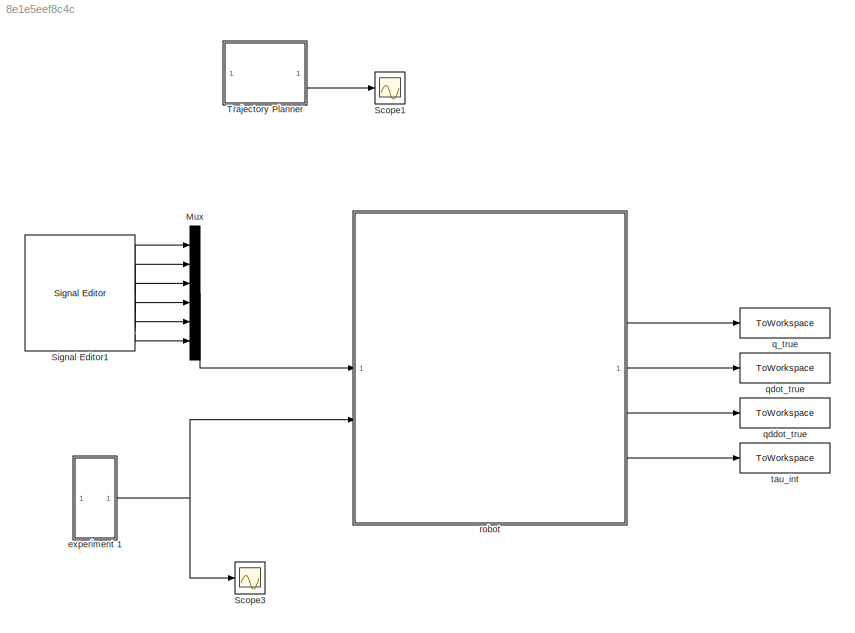
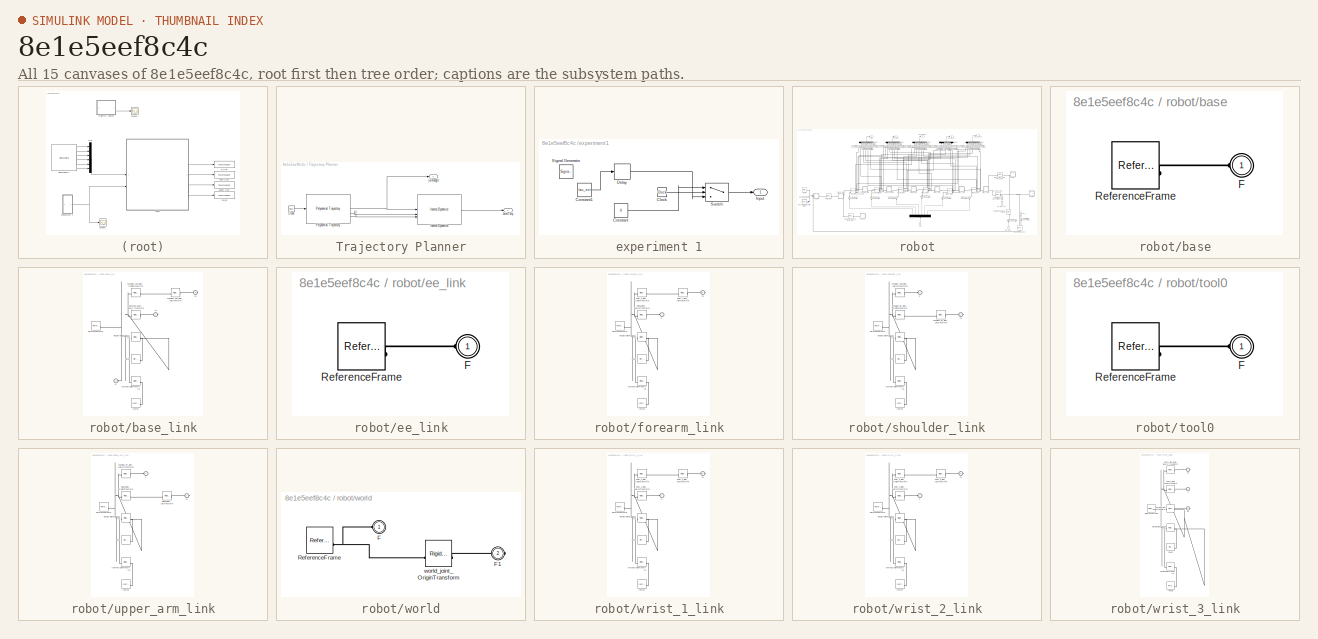
[diagram: thumbnail index - all 15 canvases of the model, root first then tree order]
MODEL slx_8e1e5eef8c4c
KIND model
CONFIG AbsTol = auto
CONFIG EnableMultiTasking = off
CONFIG FixedStep = auto
CONFIG MaxStep = auto
CONFIG MinStep = auto
CONFIG RelTol = 1e-3
CONFIG SampleTimeConstraint = Unconstrained
CONFIG SolverName = VariableStepAuto
CONFIG StartTime = 0.0
CONFIG StopTime = RUNTIME
BLOCK [Mux] Mux
  DisplayOption = bar
  Inputs = 6
BLOCK [Scope] Scope1
  Commented = on
  Floating = off
  NumInputPorts = 1
  ScopeSpecificationString = Simulink.scopes.TimeScopeBlockCfg('CurrentConfiguration', extmgr.ConfigurationSet(extmgr.Configuration('Core','General UI',true),extmgr.Configuration('Core','Source UI',true),extmgr.Configuration('Sources','WiredSimulink',true,'DataLoggingVariableName','ScopeData1'),extmgr.Configuration('Visuals','Time Domain',true,'SerializedDisplays',{struct('MinYLimReal','-2.67897','MaxYLimReal','2.07106','YLab...<+1625ch>
BLOCK [Scope] Scope3
  Floating = off
  NumInputPorts = 1
  ScopeSpecificationString = Simulink.scopes.TimeScopeBlockCfg('CurrentConfiguration', extmgr.ConfigurationSet(extmgr.Configuration('Core','General UI',true),extmgr.Configuration('Core','Source UI',true),extmgr.Configuration('Sources','WiredSimulink',true,'DataLoggingVariableName','ScopeData1'),extmgr.Configuration('Visuals','Time Domain',true,'SerializedDisplays',{struct('MinYLimReal','-12500.00000','MaxYLimReal','112500.000...<+1523ch>
BLOCK [Reference] Signal Editor1  REF=SignalEditorBlockLib/Signal Editor
  LibrarySourceBlock = simulink/Sources/Signal Editor
  SourceBlock = SignalEditorBlockLib/Signal Editor
  SourceType = SignalEditor
  UserDataPersistent = on
BLOCK [SubSystem] Trajectory Planner
  Commented = on
BLOCK [Clock] Trajectory Planner/Clock
BLOCK [Reference] Trajectory Planner/Inverse Dynamics  REF=robotmaniplib/Inverse Dynamics
  SourceBlock = robotmaniplib/Inverse Dynamics
  SourceType = Inverse Dynamics
BLOCK [Outport] Trajectory Planner/JointTorq
BLOCK [Reference] Trajectory Planner/Polynomial Trajectory  REF=robotcorelib/Polynomial Trajectory
  LibrarySourceBlock = robotutilslib/Polynomial Trajectory
  SourceBlock = robotcorelib/Polynomial Trajectory
  SourceType = robotics.slcore.internal.block.PolyTrajSys
BLOCK [Outport] Trajectory Planner/jointangle
  Port = 2
BLOCK [SubSystem] experiment 1
BLOCK [Clock] experiment 1/Clock
BLOCK [Constant] experiment 1/Constant
  SampleTime = Ts
  Value = 0
BLOCK [Constant] experiment 1/Constant1
  Value = tau_ext
BLOCK [Delay] experiment 1/Delay
  DelayLength = delay
  InputPortMap = u0
  SampleTime = Ts
BLOCK [Outport] experiment 1/Input
BLOCK [SignalGenerator] experiment 1/Signal Generator
  Amplitude = tau_ext
  Commented = on
  Frequency = 5
  Units = rad/sec
BLOCK [Switch] experiment 1/Switch
  Criteria = u2 > Threshold
  InputSameDT = off
  NameLocation = left
  SaturateOnIntegerOverflow = off
  Threshold = delay/TIM_MAG+imp
BLOCK [ToWorkspace] q_true
  FixptAsFi = on
  MaxDataPoints = inf
  SampleTime = -1
  SaveFormat = Timeseries
  VariableName = q_out
BLOCK [ToWorkspace] qddot_true
  FixptAsFi = on
  MaxDataPoints = inf
  SampleTime = -1
  SaveFormat = Timeseries
  VariableName = qddot_out
BLOCK [ToWorkspace] qdot_true
  FixptAsFi = on
  MaxDataPoints = inf
  SampleTime = -1
  SaveFormat = Timeseries
  VariableName = qdot_out
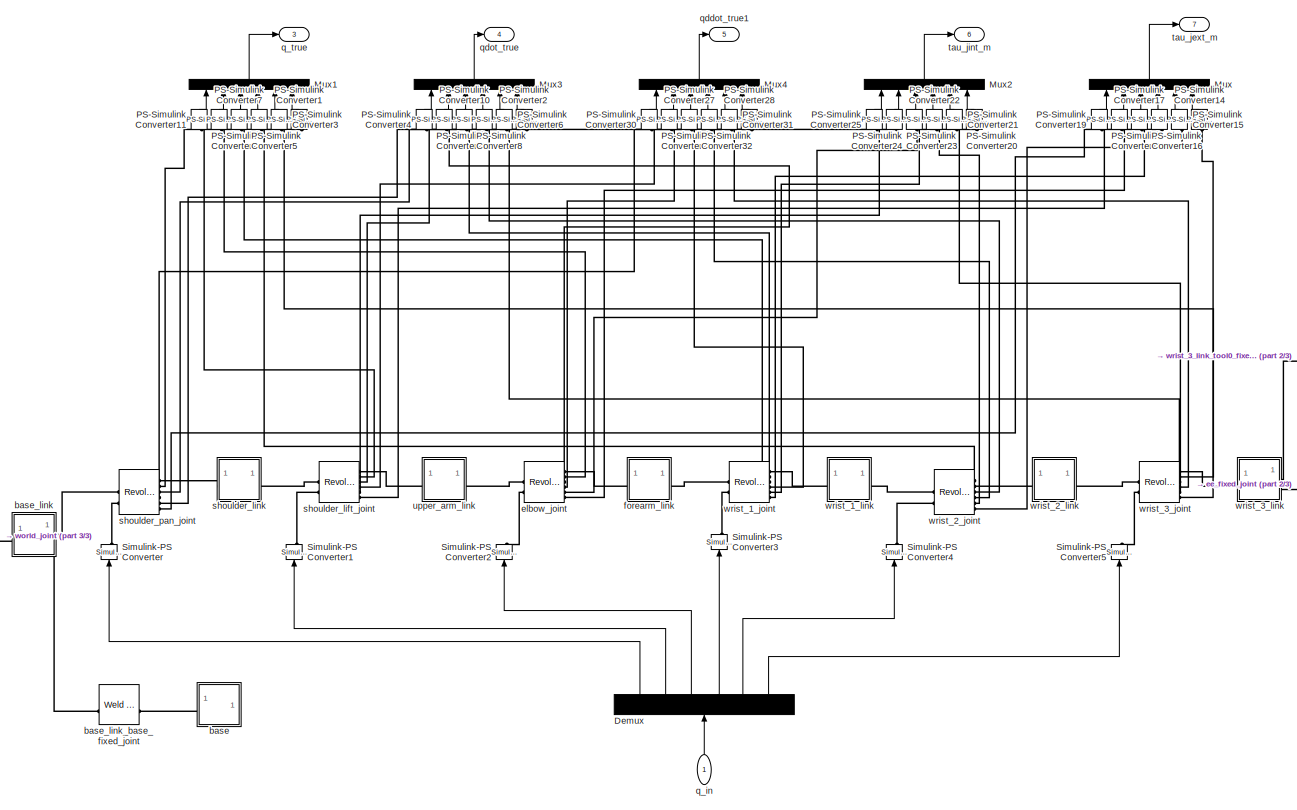
[diagram: robot - part 1/3, center side, full height]
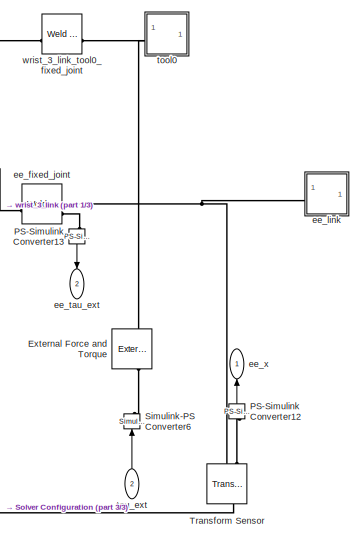
[diagram: robot - part 2/3, bottom right region]
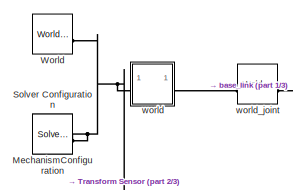
[diagram: robot - part 3/3, middle left region]
BLOCK [SubSystem] robot
  ShowPortLabels = SignalName
BLOCK [Demux] robot/Demux
  NameLocation = right
  Outputs = 6
BLOCK [Reference] robot/External Force and Torque  REF=sm_lib/Forces and
Torques/External Force
and Torque
  NameLocation = right
  SourceBlock = sm_lib/Forces and\nTorques/External Force\nand Torque
  SourceType = External Force\nand Torque
BLOCK [Reference] robot/MechanismConfiguration  REF=sm_lib/Utilities/Mechanism
Configuration
  SourceBlock = sm_lib/Utilities/Mechanism\nConfiguration
  SourceType = Mechanism\nConfiguration
BLOCK [Mux] robot/Mux
  DisplayOption = bar
  Inputs = 6
  NameLocation = right
BLOCK [Mux] robot/Mux1
  DisplayOption = bar
  Inputs = 6
  NameLocation = right
BLOCK [Mux] robot/Mux2
  DisplayOption = bar
  Inputs = 6
  NameLocation = right
BLOCK [Mux] robot/Mux3
  DisplayOption = bar
  Inputs = 6
  NameLocation = right
BLOCK [Mux] robot/Mux4
  DisplayOption = bar
  Inputs = 6
  NameLocation = right
BLOCK [Reference] robot/PS-Simulink Converter1  REF=nesl_utility/PS-Simulink
Converter
  NameLocation = right
  SourceBlock = nesl_utility/PS-Simulink\nConverter
  SourceType = PS-Simulink\nConverter
BLOCK [Reference] robot/PS-Simulink Converter10  REF=nesl_utility/PS-Simulink
Converter
  NameLocation = right
  SourceBlock = nesl_utility/PS-Simulink\nConverter
  SourceType = PS-Simulink\nConverter
BLOCK [Reference] robot/PS-Simulink Converter11  REF=nesl_utility/PS-Simulink
Converter
  NameLocation = right
  SourceBlock = nesl_utility/PS-Simulink\nConverter
  SourceType = PS-Simulink\nConverter
BLOCK [Reference] robot/PS-Simulink Converter12  REF=nesl_utility/PS-Simulink
Converter
  NameLocation = right
  SourceBlock = nesl_utility/PS-Simulink\nConverter
  SourceType = PS-Simulink\nConverter
BLOCK [Reference] robot/PS-Simulink Converter13  REF=nesl_utility/PS-Simulink
Converter
  NameLocation = left
  SourceBlock = nesl_utility/PS-Simulink\nConverter
  SourceType = PS-Simulink\nConverter
BLOCK [Reference] robot/PS-Simulink Converter14  REF=nesl_utility/PS-Simulink
Converter
  NameLocation = right
  SourceBlock = nesl_utility/PS-Simulink\nConverter
  SourceType = PS-Simulink\nConverter
BLOCK [Reference] robot/PS-Simulink Converter15  REF=nesl_utility/PS-Simulink
Converter
  NameLocation = right
  SourceBlock = nesl_utility/PS-Simulink\nConverter
  SourceType = PS-Simulink\nConverter
BLOCK [Reference] robot/PS-Simulink Converter16  REF=nesl_utility/PS-Simulink
Converter
  NameLocation = right
  SourceBlock = nesl_utility/PS-Simulink\nConverter
  SourceType = PS-Simulink\nConverter
BLOCK [Reference] robot/PS-Simulink Converter17  REF=nesl_utility/PS-Simulink
Converter
  NameLocation = right
  SourceBlock = nesl_utility/PS-Simulink\nConverter
  SourceType = PS-Simulink\nConverter
BLOCK [Reference] robot/PS-Simulink Converter18  REF=nesl_utility/PS-Simulink
Converter
  NameLocation = right
  SourceBlock = nesl_utility/PS-Simulink\nConverter
  SourceType = PS-Simulink\nConverter
BLOCK [Reference] robot/PS-Simulink Converter19  REF=nesl_utility/PS-Simulink
Converter
  NameLocation = right
  SourceBlock = nesl_utility/PS-Simulink\nConverter
  SourceType = PS-Simulink\nConverter
BLOCK [Reference] robot/PS-Simulink Converter2  REF=nesl_utility/PS-Simulink
Converter
  NameLocation = right
  SourceBlock = nesl_utility/PS-Simulink\nConverter
  SourceType = PS-Simulink\nConverter
BLOCK [Reference] robot/PS-Simulink Converter20  REF=nesl_utility/PS-Simulink
Converter
  NameLocation = right
  SourceBlock = nesl_utility/PS-Simulink\nConverter
  SourceType = PS-Simulink\nConverter
BLOCK [Reference] robot/PS-Simulink Converter21  REF=nesl_utility/PS-Simulink
Converter
  NameLocation = right
  SourceBlock = nesl_utility/PS-Simulink\nConverter
  SourceType = PS-Simulink\nConverter
BLOCK [Reference] robot/PS-Simulink Converter22  REF=nesl_utility/PS-Simulink
Converter
  NameLocation = right
  SourceBlock = nesl_utility/PS-Simulink\nConverter
  SourceType = PS-Simulink\nConverter
BLOCK [Reference] robot/PS-Simulink Converter23  REF=nesl_utility/PS-Simulink
Converter
  NameLocation = right
  SourceBlock = nesl_utility/PS-Simulink\nConverter
  SourceType = PS-Simulink\nConverter
BLOCK [Reference] robot/PS-Simulink Converter24  REF=nesl_utility/PS-Simulink
Converter
  NameLocation = right
  SourceBlock = nesl_utility/PS-Simulink\nConverter
  SourceType = PS-Simulink\nConverter
BLOCK [Reference] robot/PS-Simulink Converter25  REF=nesl_utility/PS-Simulink
Converter
  NameLocation = right
  SourceBlock = nesl_utility/PS-Simulink\nConverter
  SourceType = PS-Simulink\nConverter
BLOCK [Reference] robot/PS-Simulink Converter26  REF=nesl_utility/PS-Simulink
Converter
  NameLocation = right
  SourceBlock = nesl_utility/PS-Simulink\nConverter
  SourceType = PS-Simulink\nConverter
BLOCK [Reference] robot/PS-Simulink Converter27  REF=nesl_utility/PS-Simulink
Converter
  NameLocation = right
  SourceBlock = nesl_utility/PS-Simulink\nConverter
  SourceType = PS-Simulink\nConverter
BLOCK [Reference] robot/PS-Simulink Converter28  REF=nesl_utility/PS-Simulink
Converter
  NameLocation = right
  SourceBlock = nesl_utility/PS-Simulink\nConverter
  SourceType = PS-Simulink\nConverter
BLOCK [Reference] robot/PS-Simulink Converter29  REF=nesl_utility/PS-Simulink
Converter
  NameLocation = right
  SourceBlock = nesl_utility/PS-Simulink\nConverter
  SourceType = PS-Simulink\nConverter
BLOCK [Reference] robot/PS-Simulink Converter3  REF=nesl_utility/PS-Simulink
Converter
  NameLocation = right
  SourceBlock = nesl_utility/PS-Simulink\nConverter
  SourceType = PS-Simulink\nConverter
BLOCK [Reference] robot/PS-Simulink Converter30  REF=nesl_utility/PS-Simulink
Converter
  NameLocation = right
  SourceBlock = nesl_utility/PS-Simulink\nConverter
  SourceType = PS-Simulink\nConverter
BLOCK [Reference] robot/PS-Simulink Converter31  REF=nesl_utility/PS-Simulink
Converter
  NameLocation = right
  SourceBlock = nesl_utility/PS-Simulink\nConverter
  SourceType = PS-Simulink\nConverter
BLOCK [Reference] robot/PS-Simulink Converter32  REF=nesl_utility/PS-Simulink
Converter
  NameLocation = right
  SourceBlock = nesl_utility/PS-Simulink\nConverter
  SourceType = PS-Simulink\nConverter
BLOCK [Reference] robot/PS-Simulink Converter4  REF=nesl_utility/PS-Simulink
Converter
  NameLocation = right
  SourceBlock = nesl_utility/PS-Simulink\nConverter
  SourceType = PS-Simulink\nConverter
BLOCK [Reference] robot/PS-Simulink Converter5  REF=nesl_utility/PS-Simulink
Converter
  NameLocation = right
  SourceBlock = nesl_utility/PS-Simulink\nConverter
  SourceType = PS-Simulink\nConverter
BLOCK [Reference] robot/PS-Simulink Converter6  REF=nesl_utility/PS-Simulink
Converter
  NameLocation = right
  SourceBlock = nesl_utility/PS-Simulink\nConverter
  SourceType = PS-Simulink\nConverter
BLOCK [Reference] robot/PS-Simulink Converter7  REF=nesl_utility/PS-Simulink
Converter
  NameLocation = right
  SourceBlock = nesl_utility/PS-Simulink\nConverter
  SourceType = PS-Simulink\nConverter
BLOCK [Reference] robot/PS-Simulink Converter8  REF=nesl_utility/PS-Simulink
Converter
  NameLocation = right
  SourceBlock = nesl_utility/PS-Simulink\nConverter
  SourceType = PS-Simulink\nConverter
BLOCK [Reference] robot/PS-Simulink Converter9  REF=nesl_utility/PS-Simulink
Converter
  NameLocation = right
  SourceBlock = nesl_utility/PS-Simulink\nConverter
  SourceType = PS-Simulink\nConverter
BLOCK [Reference] robot/Simulink-PS Converter  REF=nesl_utility/Simulink-PS
Converter
  NameLocation = right
  SourceBlock = nesl_utility/Simulink-PS\nConverter
  SourceType = Simulink-PS\nConverter
BLOCK [Reference] robot/Simulink-PS Converter1  REF=nesl_utility/Simulink-PS
Converter
  NameLocation = right
  SourceBlock = nesl_utility/Simulink-PS\nConverter
  SourceType = Simulink-PS\nConverter
BLOCK [Reference] robot/Simulink-PS Converter2  REF=nesl_utility/Simulink-PS
Converter
  NameLocation = right
  SourceBlock = nesl_utility/Simulink-PS\nConverter
  SourceType = Simulink-PS\nConverter
BLOCK [Reference] robot/Simulink-PS Converter3  REF=nesl_utility/Simulink-PS
Converter
  NameLocation = right
  SourceBlock = nesl_utility/Simulink-PS\nConverter
  SourceType = Simulink-PS\nConverter
BLOCK [Reference] robot/Simulink-PS Converter4  REF=nesl_utility/Simulink-PS
Converter
  NameLocation = right
  SourceBlock = nesl_utility/Simulink-PS\nConverter
  SourceType = Simulink-PS\nConverter
BLOCK [Reference] robot/Simulink-PS Converter5  REF=nesl_utility/Simulink-PS
Converter
  NameLocation = right
  SourceBlock = nesl_utility/Simulink-PS\nConverter
  SourceType = Simulink-PS\nConverter
BLOCK [Reference] robot/Simulink-PS Converter6  REF=nesl_utility/Simulink-PS
Converter
  NameLocation = right
  SourceBlock = nesl_utility/Simulink-PS\nConverter
  SourceType = Simulink-PS\nConverter
BLOCK [Reference] robot/Solver Configuration  REF=nesl_utility/Solver
Configuration
  SourceBlock = nesl_utility/Solver\nConfiguration
  SourceType = Solver\nConfiguration
BLOCK [Reference] robot/Transform Sensor  REF=sm_lib/Frames and
Transforms/Transform
Sensor
  NameLocation = right
  SourceBlock = sm_lib/Frames and\nTransforms/Transform\nSensor
  SourceType = Transform\nSensor
BLOCK [Reference] robot/World  REF=sm_lib/Frames and
Transforms/World Frame
  SourceBlock = sm_lib/Frames and\nTransforms/World Frame
  SourceType = World Frame
BLOCK [SubSystem] robot/base
BLOCK [PMIOPort] robot/base/F
  Side = Left
BLOCK [Reference] robot/base/ReferenceFrame  REF=sm_lib/Frames and
Transforms/Reference
Frame
  SourceBlock = sm_lib/Frames and\nTransforms/Reference\nFrame
  SourceType = Reference\nFrame
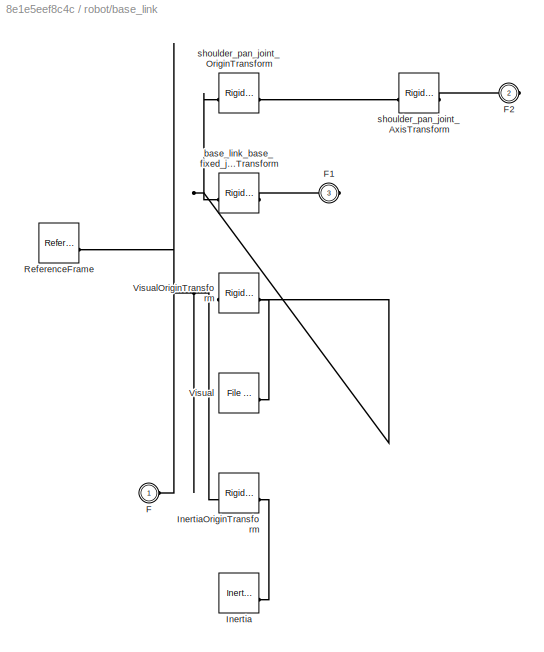
BLOCK [SubSystem] robot/base_link
BLOCK [PMIOPort] robot/base_link/F
  Side = Left
BLOCK [PMIOPort] robot/base_link/F1
  Port = 3
  Side = Right
BLOCK [PMIOPort] robot/base_link/F2
  Port = 2
  Side = Right
BLOCK [Reference] robot/base_link/Inertia  REF=sm_lib/Body Elements/Inertia
  SourceBlock = sm_lib/Body Elements/Inertia
  SourceType = Inertia
BLOCK [Reference] robot/base_link/InertiaOriginTransform  REF=sm_lib/Frames and
Transforms/Rigid
Transform
  SourceBlock = sm_lib/Frames and\nTransforms/Rigid\nTransform
  SourceType = Rigid\nTransform
BLOCK [Reference] robot/base_link/ReferenceFrame  REF=sm_lib/Frames and
Transforms/Reference
Frame
  SourceBlock = sm_lib/Frames and\nTransforms/Reference\nFrame
  SourceType = Reference\nFrame
BLOCK [Reference] robot/base_link/Visual  REF=sm_lib/Body Elements/File Solid
  SourceBlock = sm_lib/Body Elements/File Solid
  SourceType = File Solid
BLOCK [Reference] robot/base_link/VisualOriginTransform  REF=sm_lib/Frames and
Transforms/Rigid
Transform
  SourceBlock = sm_lib/Frames and\nTransforms/Rigid\nTransform
  SourceType = Rigid\nTransform
BLOCK [Reference] robot/base_link/base_link_base_fixed_joint_OriginTransform  REF=sm_lib/Frames and
Transforms/Rigid
Transform
  SourceBlock = sm_lib/Frames and\nTransforms/Rigid\nTransform
  SourceType = Rigid\nTransform
BLOCK [Reference] robot/base_link/shoulder_pan_joint_AxisTransform  REF=sm_lib/Frames and
Transforms/Rigid
Transform
  SourceBlock = sm_lib/Frames and\nTransforms/Rigid\nTransform
  SourceType = Rigid\nTransform
BLOCK [Reference] robot/base_link/shoulder_pan_joint_OriginTransform  REF=sm_lib/Frames and
Transforms/Rigid
Transform
  SourceBlock = sm_lib/Frames and\nTransforms/Rigid\nTransform
  SourceType = Rigid\nTransform
BLOCK [Reference] robot/base_link_base_fixed_joint  REF=sm_lib/Joints/Weld Joint
  SourceBlock = sm_lib/Joints/Weld Joint
  SourceType = Weld Joint
BLOCK [Reference] robot/ee_fixed_joint  REF=sm_lib/Joints/Weld Joint
  SourceBlock = sm_lib/Joints/Weld Joint
  SourceType = Weld Joint
BLOCK [SubSystem] robot/ee_link
BLOCK [PMIOPort] robot/ee_link/F
  Side = Left
BLOCK [Reference] robot/ee_link/ReferenceFrame  REF=sm_lib/Frames and
Transforms/Reference
Frame
  SourceBlock = sm_lib/Frames and\nTransforms/Reference\nFrame
  SourceType = Reference\nFrame
BLOCK [Outport] robot/ee_tau_ext
  NameLocation = left
  Port = 2
  SampleTime = Ts
BLOCK [Outport] robot/ee_x
  NameLocation = right
  SampleTime = Ts
BLOCK [Reference] robot/elbow_joint  REF=sm_lib/Joints/Revolute Joint
  SourceBlock = sm_lib/Joints/Revolute Joint
  SourceType = Revolute Joint
BLOCK [SubSystem] robot/forearm_link
BLOCK [PMIOPort] robot/forearm_link/F
  Side = Left
BLOCK [PMIOPort] robot/forearm_link/F1
  Port = 2
  Side = Right
BLOCK [Reference] robot/forearm_link/Inertia  REF=sm_lib/Body Elements/Inertia
  SourceBlock = sm_lib/Body Elements/Inertia
  SourceType = Inertia
BLOCK [Reference] robot/forearm_link/InertiaOriginTransform  REF=sm_lib/Frames and
Transforms/Rigid
Transform
  SourceBlock = sm_lib/Frames and\nTransforms/Rigid\nTransform
  SourceType = Rigid\nTransform
BLOCK [Reference] robot/forearm_link/ReferenceFrame  REF=sm_lib/Frames and
Transforms/Reference
Frame
  SourceBlock = sm_lib/Frames and\nTransforms/Reference\nFrame
  SourceType = Reference\nFrame
BLOCK [Reference] robot/forearm_link/Visual  REF=sm_lib/Body Elements/File Solid
  SourceBlock = sm_lib/Body Elements/File Solid
  SourceType = File Solid
BLOCK [Reference] robot/forearm_link/VisualOriginTransform  REF=sm_lib/Frames and
Transforms/Rigid
Transform
  SourceBlock = sm_lib/Frames and\nTransforms/Rigid\nTransform
  SourceType = Rigid\nTransform
BLOCK [Reference] robot/forearm_link/elbow_joint_AxisInvTransform  REF=sm_lib/Frames and
Transforms/Rigid
Transform
  SourceBlock = sm_lib/Frames and\nTransforms/Rigid\nTransform
  SourceType = Rigid\nTransform
BLOCK [Reference] robot/forearm_link/wrist_1_joint_AxisTransform  REF=sm_lib/Frames and
Transforms/Rigid
Transform
  SourceBlock = sm_lib/Frames and\nTransforms/Rigid\nTransform
  SourceType = Rigid\nTransform
BLOCK [Reference] robot/forearm_link/wrist_1_joint_OriginTransform  REF=sm_lib/Frames and
Transforms/Rigid
Transform
  SourceBlock = sm_lib/Frames and\nTransforms/Rigid\nTransform
  SourceType = Rigid\nTransform
BLOCK [Inport] robot/q_in
  NameLocation = right
BLOCK [Outport] robot/q_true
  Port = 3
  SampleTime = Ts
BLOCK [Outport] robot/qddot_true1
  Port = 5
  SampleTime = Ts
BLOCK [Outport] robot/qdot_true
  Port = 4
  SampleTime = Ts
BLOCK [Reference] robot/shoulder_lift_joint  REF=sm_lib/Joints/Revolute Joint
  SourceBlock = sm_lib/Joints/Revolute Joint
  SourceType = Revolute Joint
BLOCK [SubSystem] robot/shoulder_link
BLOCK [PMIOPort] robot/shoulder_link/F
  Side = Left
BLOCK [PMIOPort] robot/shoulder_link/F1
  Port = 2
  Side = Right
BLOCK [Reference] robot/shoulder_link/Inertia  REF=sm_lib/Body Elements/Inertia
  SourceBlock = sm_lib/Body Elements/Inertia
  SourceType = Inertia
BLOCK [Reference] robot/shoulder_link/InertiaOriginTransform  REF=sm_lib/Frames and
Transforms/Rigid
Transform
  SourceBlock = sm_lib/Frames and\nTransforms/Rigid\nTransform
  SourceType = Rigid\nTransform
BLOCK [Reference] robot/shoulder_link/ReferenceFrame  REF=sm_lib/Frames and
Transforms/Reference
Frame
  SourceBlock = sm_lib/Frames and\nTransforms/Reference\nFrame
  SourceType = Reference\nFrame
BLOCK [Reference] robot/shoulder_link/Visual  REF=sm_lib/Body Elements/File Solid
  SourceBlock = sm_lib/Body Elements/File Solid
  SourceType = File Solid
BLOCK [Reference] robot/shoulder_link/VisualOriginTransform  REF=sm_lib/Frames and
Transforms/Rigid
Transform
  SourceBlock = sm_lib/Frames and\nTransforms/Rigid\nTransform
  SourceType = Rigid\nTransform
BLOCK [Reference] robot/shoulder_link/shoulder_lift_joint_AxisTransform  REF=sm_lib/Frames and
Transforms/Rigid
Transform
  SourceBlock = sm_lib/Frames and\nTransforms/Rigid\nTransform
  SourceType = Rigid\nTransform
BLOCK [Reference] robot/shoulder_link/shoulder_lift_joint_OriginTransform  REF=sm_lib/Frames and
Transforms/Rigid
Transform
  SourceBlock = sm_lib/Frames and\nTransforms/Rigid\nTransform
  SourceType = Rigid\nTransform
BLOCK [Reference] robot/shoulder_link/shoulder_pan_joint_AxisInvTransform  REF=sm_lib/Frames and
Transforms/Rigid
Transform
  SourceBlock = sm_lib/Frames and\nTransforms/Rigid\nTransform
  SourceType = Rigid\nTransform
BLOCK [Reference] robot/shoulder_pan_joint  REF=sm_lib/Joints/Revolute Joint
  SourceBlock = sm_lib/Joints/Revolute Joint
  SourceType = Revolute Joint
BLOCK [Inport] robot/tau_ext
  NameLocation = right
  Port = 2
BLOCK [Outport] robot/tau_jext_m
  Port = 7
  SampleTime = Ts
BLOCK [Outport] robot/tau_jint_m
  Port = 6
  SampleTime = Ts
BLOCK [SubSystem] robot/tool0
BLOCK [PMIOPort] robot/tool0/F
  Side = Left
BLOCK [Reference] robot/tool0/ReferenceFrame  REF=sm_lib/Frames and
Transforms/Reference
Frame
  SourceBlock = sm_lib/Frames and\nTransforms/Reference\nFrame
  SourceType = Reference\nFrame
BLOCK [SubSystem] robot/upper_arm_link
BLOCK [PMIOPort] robot/upper_arm_link/F
  Side = Left
BLOCK [PMIOPort] robot/upper_arm_link/F1
  Port = 2
  Side = Right
BLOCK [Reference] robot/upper_arm_link/Inertia  REF=sm_lib/Body Elements/Inertia
  SourceBlock = sm_lib/Body Elements/Inertia
  SourceType = Inertia
BLOCK [Reference] robot/upper_arm_link/InertiaOriginTransform  REF=sm_lib/Frames and
Transforms/Rigid
Transform
  SourceBlock = sm_lib/Frames and\nTransforms/Rigid\nTransform
  SourceType = Rigid\nTransform
BLOCK [Reference] robot/upper_arm_link/ReferenceFrame  REF=sm_lib/Frames and
Transforms/Reference
Frame
  SourceBlock = sm_lib/Frames and\nTransforms/Reference\nFrame
  SourceType = Reference\nFrame
BLOCK [Reference] robot/upper_arm_link/Visual  REF=sm_lib/Body Elements/File Solid
  SourceBlock = sm_lib/Body Elements/File Solid
  SourceType = File Solid
BLOCK [Reference] robot/upper_arm_link/VisualOriginTransform  REF=sm_lib/Frames and
Transforms/Rigid
Transform
  SourceBlock = sm_lib/Frames and\nTransforms/Rigid\nTransform
  SourceType = Rigid\nTransform
BLOCK [Reference] robot/upper_arm_link/elbow_joint_AxisTransform  REF=sm_lib/Frames and
Transforms/Rigid
Transform
  SourceBlock = sm_lib/Frames and\nTransforms/Rigid\nTransform
  SourceType = Rigid\nTransform
BLOCK [Reference] robot/upper_arm_link/elbow_joint_OriginTransform  REF=sm_lib/Frames and
Transforms/Rigid
Transform
  SourceBlock = sm_lib/Frames and\nTransforms/Rigid\nTransform
  SourceType = Rigid\nTransform
BLOCK [Reference] robot/upper_arm_link/shoulder_lift_joint_AxisInvTransform  REF=sm_lib/Frames and
Transforms/Rigid
Transform
  SourceBlock = sm_lib/Frames and\nTransforms/Rigid\nTransform
  SourceType = Rigid\nTransform
BLOCK [SubSystem] robot/world
BLOCK [PMIOPort] robot/world/F
  Side = Left
BLOCK [PMIOPort] robot/world/F1
  Port = 2
  Side = Right
BLOCK [Reference] robot/world/ReferenceFrame  REF=sm_lib/Frames and
Transforms/Reference
Frame
  SourceBlock = sm_lib/Frames and\nTransforms/Reference\nFrame
  SourceType = Reference\nFrame
BLOCK [Reference] robot/world/world_joint_OriginTransform  REF=sm_lib/Frames and
Transforms/Rigid
Transform
  SourceBlock = sm_lib/Frames and\nTransforms/Rigid\nTransform
  SourceType = Rigid\nTransform
BLOCK [Reference] robot/world_joint  REF=sm_lib/Joints/Weld Joint
  SourceBlock = sm_lib/Joints/Weld Joint
  SourceType = Weld Joint
BLOCK [Reference] robot/wrist_1_joint  REF=sm_lib/Joints/Revolute Joint
  SourceBlock = sm_lib/Joints/Revolute Joint
  SourceType = Revolute Joint
BLOCK [SubSystem] robot/wrist_1_link
BLOCK [PMIOPort] robot/wrist_1_link/F
  Side = Left
BLOCK [PMIOPort] robot/wrist_1_link/F1
  Port = 2
  Side = Right
BLOCK [Reference] robot/wrist_1_link/Inertia  REF=sm_lib/Body Elements/Inertia
  SourceBlock = sm_lib/Body Elements/Inertia
  SourceType = Inertia
BLOCK [Reference] robot/wrist_1_link/InertiaOriginTransform  REF=sm_lib/Frames and
Transforms/Rigid
Transform
  SourceBlock = sm_lib/Frames and\nTransforms/Rigid\nTransform
  SourceType = Rigid\nTransform
BLOCK [Reference] robot/wrist_1_link/ReferenceFrame  REF=sm_lib/Frames and
Transforms/Reference
Frame
  SourceBlock = sm_lib/Frames and\nTransforms/Reference\nFrame
  SourceType = Reference\nFrame
BLOCK [Reference] robot/wrist_1_link/Visual  REF=sm_lib/Body Elements/File Solid
  SourceBlock = sm_lib/Body Elements/File Solid
  SourceType = File Solid
BLOCK [Reference] robot/wrist_1_link/VisualOriginTransform  REF=sm_lib/Frames and
Transforms/Rigid
Transform
  SourceBlock = sm_lib/Frames and\nTransforms/Rigid\nTransform
  SourceType = Rigid\nTransform
BLOCK [Reference] robot/wrist_1_link/wrist_1_joint_AxisInvTransform  REF=sm_lib/Frames and
Transforms/Rigid
Transform
  SourceBlock = sm_lib/Frames and\nTransforms/Rigid\nTransform
  SourceType = Rigid\nTransform
BLOCK [Reference] robot/wrist_1_link/wrist_2_joint_AxisTransform  REF=sm_lib/Frames and
Transforms/Rigid
Transform
  SourceBlock = sm_lib/Frames and\nTransforms/Rigid\nTransform
  SourceType = Rigid\nTransform
BLOCK [Reference] robot/wrist_1_link/wrist_2_joint_OriginTransform  REF=sm_lib/Frames and
Transforms/Rigid
Transform
  SourceBlock = sm_lib/Frames and\nTransforms/Rigid\nTransform
  SourceType = Rigid\nTransform
BLOCK [Reference] robot/wrist_2_joint  REF=sm_lib/Joints/Revolute Joint
  SourceBlock = sm_lib/Joints/Revolute Joint
  SourceType = Revolute Joint
BLOCK [SubSystem] robot/wrist_2_link
BLOCK [PMIOPort] robot/wrist_2_link/F
  Side = Left
BLOCK [PMIOPort] robot/wrist_2_link/F1
  Port = 2
  Side = Right
BLOCK [Reference] robot/wrist_2_link/Inertia  REF=sm_lib/Body Elements/Inertia
  SourceBlock = sm_lib/Body Elements/Inertia
  SourceType = Inertia
BLOCK [Reference] robot/wrist_2_link/InertiaOriginTransform  REF=sm_lib/Frames and
Transforms/Rigid
Transform
  SourceBlock = sm_lib/Frames and\nTransforms/Rigid\nTransform
  SourceType = Rigid\nTransform
BLOCK [Reference] robot/wrist_2_link/ReferenceFrame  REF=sm_lib/Frames and
Transforms/Reference
Frame
  SourceBlock = sm_lib/Frames and\nTransforms/Reference\nFrame
  SourceType = Reference\nFrame
BLOCK [Reference] robot/wrist_2_link/Visual  REF=sm_lib/Body Elements/File Solid
  SourceBlock = sm_lib/Body Elements/File Solid
  SourceType = File Solid
BLOCK [Reference] robot/wrist_2_link/VisualOriginTransform  REF=sm_lib/Frames and
Transforms/Rigid
Transform
  SourceBlock = sm_lib/Frames and\nTransforms/Rigid\nTransform
  SourceType = Rigid\nTransform
BLOCK [Reference] robot/wrist_2_link/wrist_2_joint_AxisInvTransform  REF=sm_lib/Frames and
Transforms/Rigid
Transform
  SourceBlock = sm_lib/Frames and\nTransforms/Rigid\nTransform
  SourceType = Rigid\nTransform
BLOCK [Reference] robot/wrist_2_link/wrist_3_joint_AxisTransform  REF=sm_lib/Frames and
Transforms/Rigid
Transform
  SourceBlock = sm_lib/Frames and\nTransforms/Rigid\nTransform
  SourceType = Rigid\nTransform
BLOCK [Reference] robot/wrist_2_link/wrist_3_joint_OriginTransform  REF=sm_lib/Frames and
Transforms/Rigid
Transform
  SourceBlock = sm_lib/Frames and\nTransforms/Rigid\nTransform
  SourceType = Rigid\nTransform
BLOCK [Reference] robot/wrist_3_joint  REF=sm_lib/Joints/Revolute Joint
  SourceBlock = sm_lib/Joints/Revolute Joint
  SourceType = Revolute Joint
BLOCK [SubSystem] robot/wrist_3_link
BLOCK [PMIOPort] robot/wrist_3_link/F
  Side = Left
BLOCK [PMIOPort] robot/wrist_3_link/F1
  Port = 3
  Side = Right
BLOCK [PMIOPort] robot/wrist_3_link/F2
  Port = 2
  Side = Right
BLOCK [Reference] robot/wrist_3_link/Inertia  REF=sm_lib/Body Elements/Inertia
  SourceBlock = sm_lib/Body Elements/Inertia
  SourceType = Inertia
BLOCK [Reference] robot/wrist_3_link/InertiaOriginTransform  REF=sm_lib/Frames and
Transforms/Rigid
Transform
  SourceBlock = sm_lib/Frames and\nTransforms/Rigid\nTransform
  SourceType = Rigid\nTransform
BLOCK [Reference] robot/wrist_3_link/ReferenceFrame  REF=sm_lib/Frames and
Transforms/Reference
Frame
  SourceBlock = sm_lib/Frames and\nTransforms/Reference\nFrame
  SourceType = Reference\nFrame
BLOCK [Reference] robot/wrist_3_link/Visual  REF=sm_lib/Body Elements/File Solid
  SourceBlock = sm_lib/Body Elements/File Solid
  SourceType = File Solid
BLOCK [Reference] robot/wrist_3_link/VisualOriginTransform  REF=sm_lib/Frames and
Transforms/Rigid
Transform
  SourceBlock = sm_lib/Frames and\nTransforms/Rigid\nTransform
  SourceType = Rigid\nTransform
BLOCK [Reference] robot/wrist_3_link/ee_fixed_joint_OriginTransform  REF=sm_lib/Frames and
Transforms/Rigid
Transform
  SourceBlock = sm_lib/Frames and\nTransforms/Rigid\nTransform
  SourceType = Rigid\nTransform
BLOCK [Reference] robot/wrist_3_link/wrist_3_joint_AxisInvTransform  REF=sm_lib/Frames and
Transforms/Rigid
Transform
  SourceBlock = sm_lib/Frames and\nTransforms/Rigid\nTransform
  SourceType = Rigid\nTransform
BLOCK [Reference] robot/wrist_3_link/wrist_3_link_tool0_fixed_joint_OriginTransform  REF=sm_lib/Frames and
Transforms/Rigid
Transform
  SourceBlock = sm_lib/Frames and\nTransforms/Rigid\nTransform
  SourceType = Rigid\nTransform
BLOCK [Reference] robot/wrist_3_link_tool0_fixed_joint  REF=sm_lib/Joints/Weld Joint
  SourceBlock = sm_lib/Joints/Weld Joint
  SourceType = Weld Joint
BLOCK [ToWorkspace] tau_int
  FixptAsFi = on
  MaxDataPoints = inf
  SampleTime = -1
  SaveFormat = Timeseries
  VariableName = tau_jint_out
LINE Mux:1 -> robot:1
LINE Signal Editor1:1 -> Mux:1
LINE Signal Editor1:2 -> Mux:2
LINE Signal Editor1:3 -> Mux:3
LINE Signal Editor1:4 -> Mux:4
LINE Signal Editor1:5 -> Mux:5
LINE Signal Editor1:6 -> Mux:6
LINE Trajectory Planner/Clock:1 -> Trajectory Planner/Polynomial Trajectory:1
LINE Trajectory Planner/Inverse Dynamics:1 -> Trajectory Planner/JointTorq:1
NET Trajectory Planner/Polynomial Trajectory:1 -> Trajectory Planner/Inverse Dynamics:1, Trajectory Planner/jointangle:1
LINE Trajectory Planner/Polynomial Trajectory:2 -> Trajectory Planner/Inverse Dynamics:2
LINE Trajectory Planner/Polynomial Trajectory:3 -> Trajectory Planner/Inverse Dynamics:3
LINE Trajectory Planner:2 -> Scope1:1
LINE experiment 1/Clock:1 -> experiment 1/Switch:2
LINE experiment 1/Constant1:1 -> experiment 1/Delay:1
LINE experiment 1/Constant:1 -> experiment 1/Switch:1
LINE experiment 1/Delay:1 -> experiment 1/Switch:3
LINE experiment 1/Switch:1 -> experiment 1/Input:1
NET experiment 1:1 -> Scope3:1, robot:2
LINE robot/Demux:1 -> robot/Simulink-PS Converter:1
LINE robot/Demux:2 -> robot/Simulink-PS Converter1:1
LINE robot/Demux:3 -> robot/Simulink-PS Converter2:1
LINE robot/Demux:4 -> robot/Simulink-PS Converter3:1
LINE robot/Demux:5 -> robot/Simulink-PS Converter4:1
LINE robot/Demux:6 -> robot/Simulink-PS Converter5:1
LINE robot/Mux1:1 -> robot/q_true:1
LINE robot/Mux2:1 -> robot/tau_jint_m:1
LINE robot/Mux3:1 -> robot/qdot_true:1
LINE robot/Mux4:1 -> robot/qddot_true1:1
LINE robot/Mux:1 -> robot/tau_jext_m:1
LINE robot/PS-Simulink Converter10:1 -> robot/Mux3:3
LINE robot/PS-Simulink Converter11:1 -> robot/Mux1:1
LINE robot/PS-Simulink Converter12:1 -> robot/ee_x:1
LINE robot/PS-Simulink Converter13:1 -> robot/ee_tau_ext:1
LINE robot/PS-Simulink Converter14:1 -> robot/Mux:6
LINE robot/PS-Simulink Converter15:1 -> robot/Mux:5
LINE robot/PS-Simulink Converter16:1 -> robot/Mux:4
LINE robot/PS-Simulink Converter17:1 -> robot/Mux:3
LINE robot/PS-Simulink Converter18:1 -> robot/Mux:2
LINE robot/PS-Simulink Converter19:1 -> robot/Mux:1
LINE robot/PS-Simulink Converter1:1 -> robot/Mux1:6
LINE robot/PS-Simulink Converter20:1 -> robot/Mux2:6
LINE robot/PS-Simulink Converter21:1 -> robot/Mux2:5
LINE robot/PS-Simulink Converter22:1 -> robot/Mux2:4
LINE robot/PS-Simulink Converter23:1 -> robot/Mux2:3
LINE robot/PS-Simulink Converter24:1 -> robot/Mux2:2
LINE robot/PS-Simulink Converter25:1 -> robot/Mux2:1
LINE robot/PS-Simulink Converter26:1 -> robot/Mux3:2
LINE robot/PS-Simulink Converter27:1 -> robot/Mux4:3
LINE robot/PS-Simulink Converter28:1 -> robot/Mux4:6
LINE robot/PS-Simulink Converter29:1 -> robot/Mux4:2
LINE robot/PS-Simulink Converter2:1 -> robot/Mux3:6
LINE robot/PS-Simulink Converter30:1 -> robot/Mux4:1
LINE robot/PS-Simulink Converter31:1 -> robot/Mux4:5
LINE robot/PS-Simulink Converter32:1 -> robot/Mux4:4
LINE robot/PS-Simulink Converter3:1 -> robot/Mux1:5
LINE robot/PS-Simulink Converter4:1 -> robot/Mux3:1
LINE robot/PS-Simulink Converter5:1 -> robot/Mux1:4
LINE robot/PS-Simulink Converter6:1 -> robot/Mux3:5
LINE robot/PS-Simulink Converter7:1 -> robot/Mux1:3
LINE robot/PS-Simulink Converter8:1 -> robot/Mux3:4
LINE robot/PS-Simulink Converter9:1 -> robot/Mux1:2
LINE robot/q_in:1 -> robot/Demux:1
LINE robot/tau_ext:1 -> robot/Simulink-PS Converter6:1
LINE robot:3 -> q_true:1
LINE robot:4 -> qdot_true:1
LINE robot:5 -> qddot_true:1
LINE robot:6 -> tau_int:1
PLINE robot/External Force and Torque:LConn1 -- robot/Simulink-PS Converter6:RConn1
PNET net1: robot/External Force and Torque:RConn1 -- robot/tool0:LConn1 -- robot/wrist_3_link_tool0_fixed_joint:RConn1
PNET net2: robot/MechanismConfiguration:RConn1 -- robot/Solver Configuration:RConn1 -- robot/Transform Sensor:LConn1 -- robot/World:RConn1 -- robot/world:LConn1
PLINE robot/PS-Simulink Converter10:LConn1 -- robot/elbow_joint:RConn3
PLINE robot/PS-Simulink Converter11:LConn1 -- robot/shoulder_pan_joint:RConn2
PLINE robot/PS-Simulink Converter12:LConn1 -- robot/Transform Sensor:RConn2
PLINE robot/PS-Simulink Converter13:LConn1 -- robot/ee_fixed_joint:RConn2
PLINE robot/PS-Simulink Converter14:LConn1 -- robot/wrist_3_joint:RConn6
PLINE robot/PS-Simulink Converter15:LConn1 -- robot/wrist_2_joint:RConn6
PLINE robot/PS-Simulink Converter16:LConn1 -- robot/wrist_1_joint:RConn6
PLINE robot/PS-Simulink Converter17:LConn1 -- robot/elbow_joint:RConn6
PLINE robot/PS-Simulink Converter18:LConn1 -- robot/shoulder_lift_joint:RConn6
PLINE robot/PS-Simulink Converter19:LConn1 -- robot/shoulder_pan_joint:RConn6
PLINE robot/PS-Simulink Converter1:LConn1 -- robot/wrist_3_joint:RConn2
PLINE robot/PS-Simulink Converter20:LConn1 -- robot/wrist_3_joint:RConn5
PLINE robot/PS-Simulink Converter21:LConn1 -- robot/wrist_2_joint:RConn5
PLINE robot/PS-Simulink Converter22:LConn1 -- robot/wrist_1_joint:RConn5
PLINE robot/PS-Simulink Converter23:LConn1 -- robot/elbow_joint:RConn5
PLINE robot/PS-Simulink Converter24:LConn1 -- robot/shoulder_lift_joint:RConn5
PLINE robot/PS-Simulink Converter25:LConn1 -- robot/shoulder_pan_joint:RConn5
PLINE robot/PS-Simulink Converter26:LConn1 -- robot/shoulder_lift_joint:RConn3
PLINE robot/PS-Simulink Converter27:LConn1 -- robot/elbow_joint:RConn4
PLINE robot/PS-Simulink Converter28:LConn1 -- robot/wrist_3_joint:RConn4
PLINE robot/PS-Simulink Converter29:LConn1 -- robot/shoulder_lift_joint:RConn4
PLINE robot/PS-Simulink Converter2:LConn1 -- robot/wrist_3_joint:RConn3
PLINE robot/PS-Simulink Converter30:LConn1 -- robot/shoulder_pan_joint:RConn4
PLINE robot/PS-Simulink Converter31:LConn1 -- robot/wrist_2_joint:RConn4
PLINE robot/PS-Simulink Converter32:LConn1 -- robot/wrist_1_joint:RConn4
PLINE robot/PS-Simulink Converter3:LConn1 -- robot/wrist_2_joint:RConn2
PLINE robot/PS-Simulink Converter4:LConn1 -- robot/shoulder_pan_joint:RConn3
PLINE robot/PS-Simulink Converter5:LConn1 -- robot/wrist_1_joint:RConn2
PLINE robot/PS-Simulink Converter6:LConn1 -- robot/wrist_2_joint:RConn3
PLINE robot/PS-Simulink Converter7:LConn1 -- robot/elbow_joint:RConn2
PLINE robot/PS-Simulink Converter8:LConn1 -- robot/wrist_1_joint:RConn3
PLINE robot/PS-Simulink Converter9:LConn1 -- robot/shoulder_lift_joint:RConn2
PLINE robot/Simulink-PS Converter1:RConn1 -- robot/shoulder_lift_joint:LConn2
PLINE robot/Simulink-PS Converter2:RConn1 -- robot/elbow_joint:LConn2
PLINE robot/Simulink-PS Converter3:RConn1 -- robot/wrist_1_joint:LConn2
PLINE robot/Simulink-PS Converter4:RConn1 -- robot/wrist_2_joint:LConn2
PLINE robot/Simulink-PS Converter5:RConn1 -- robot/wrist_3_joint:LConn2
PLINE robot/Simulink-PS Converter:RConn1 -- robot/shoulder_pan_joint:LConn2
PNET net3: robot/Transform Sensor:RConn1 -- robot/ee_fixed_joint:RConn1 -- robot/ee_link:LConn1
PLINE robot/base/F:RConn1 -- robot/base/ReferenceFrame:RConn1
PLINE robot/base:LConn1 -- robot/base_link_base_fixed_joint:RConn1
PLINE robot/base_link/F1:RConn1 -- robot/base_link/base_link_base_fixed_joint_OriginTransform:RConn1
PLINE robot/base_link/F2:RConn1 -- robot/base_link/shoulder_pan_joint_AxisTransform:RConn1
PNET net4: robot/base_link/F:RConn1 -- robot/base_link/InertiaOriginTransform:LConn1 -- robot/base_link/ReferenceFrame:RConn1 -- robot/base_link/VisualOriginTransform:LConn1 -- robot/base_link/base_link_base_fixed_joint_OriginTransform:LConn1 -- robot/base_link/shoulder_pan_joint_OriginTransform:LConn1
PLINE robot/base_link/Inertia:RConn1 -- robot/base_link/InertiaOriginTransform:RConn1
PLINE robot/base_link/Visual:RConn1 -- robot/base_link/VisualOriginTransform:RConn1
PLINE robot/base_link/shoulder_pan_joint_AxisTransform:LConn1 -- robot/base_link/shoulder_pan_joint_OriginTransform:RConn1
PLINE robot/base_link:LConn1 -- robot/world_joint:RConn1
PLINE robot/base_link:RConn1 -- robot/shoulder_pan_joint:LConn1
PLINE robot/base_link:RConn2 -- robot/base_link_base_fixed_joint:LConn1
PLINE robot/ee_fixed_joint:LConn1 -- robot/wrist_3_link:RConn2
PLINE robot/ee_link/F:RConn1 -- robot/ee_link/ReferenceFrame:RConn1
PLINE robot/elbow_joint:LConn1 -- robot/upper_arm_link:RConn1
PLINE robot/elbow_joint:RConn1 -- robot/forearm_link:LConn1
PLINE robot/forearm_link/F1:RConn1 -- robot/forearm_link/wrist_1_joint_AxisTransform:RConn1
PLINE robot/forearm_link/F:RConn1 -- robot/forearm_link/elbow_joint_AxisInvTransform:RConn1
PLINE robot/forearm_link/Inertia:RConn1 -- robot/forearm_link/InertiaOriginTransform:RConn1
PNET net5: robot/forearm_link/InertiaOriginTransform:LConn1 -- robot/forearm_link/ReferenceFrame:RConn1 -- robot/forearm_link/VisualOriginTransform:LConn1 -- robot/forearm_link/elbow_joint_AxisInvTransform:LConn1 -- robot/forearm_link/wrist_1_joint_OriginTransform:LConn1
PLINE robot/forearm_link/Visual:RConn1 -- robot/forearm_link/VisualOriginTransform:RConn1
PLINE robot/forearm_link/wrist_1_joint_AxisTransform:LConn1 -- robot/forearm_link/wrist_1_joint_OriginTransform:RConn1
PLINE robot/forearm_link:RConn1 -- robot/wrist_1_joint:LConn1
PLINE robot/shoulder_lift_joint:LConn1 -- robot/shoulder_link:RConn1
PLINE robot/shoulder_lift_joint:RConn1 -- robot/upper_arm_link:LConn1
PLINE robot/shoulder_link/F1:RConn1 -- robot/shoulder_link/shoulder_lift_joint_AxisTransform:RConn1
PLINE robot/shoulder_link/F:RConn1 -- robot/shoulder_link/shoulder_pan_joint_AxisInvTransform:RConn1
PLINE robot/shoulder_link/Inertia:RConn1 -- robot/shoulder_link/InertiaOriginTransform:RConn1
PNET net6: robot/shoulder_link/InertiaOriginTransform:LConn1 -- robot/shoulder_link/ReferenceFrame:RConn1 -- robot/shoulder_link/VisualOriginTransform:LConn1 -- robot/shoulder_link/shoulder_lift_joint_OriginTransform:LConn1 -- robot/shoulder_link/shoulder_pan_joint_AxisInvTransform:LConn1
PLINE robot/shoulder_link/Visual:RConn1 -- robot/shoulder_link/VisualOriginTransform:RConn1
PLINE robot/shoulder_link/shoulder_lift_joint_AxisTransform:LConn1 -- robot/shoulder_link/shoulder_lift_joint_OriginTransform:RConn1
PLINE robot/shoulder_link:LConn1 -- robot/shoulder_pan_joint:RConn1
PLINE robot/tool0/F:RConn1 -- robot/tool0/ReferenceFrame:RConn1
PLINE robot/upper_arm_link/F1:RConn1 -- robot/upper_arm_link/elbow_joint_AxisTransform:RConn1
PLINE robot/upper_arm_link/F:RConn1 -- robot/upper_arm_link/shoulder_lift_joint_AxisInvTransform:RConn1
PLINE robot/upper_arm_link/Inertia:RConn1 -- robot/upper_arm_link/InertiaOriginTransform:RConn1
PNET net7: robot/upper_arm_link/InertiaOriginTransform:LConn1 -- robot/upper_arm_link/ReferenceFrame:RConn1 -- robot/upper_arm_link/VisualOriginTransform:LConn1 -- robot/upper_arm_link/elbow_joint_OriginTransform:LConn1 -- robot/upper_arm_link/shoulder_lift_joint_AxisInvTransform:LConn1
PLINE robot/upper_arm_link/Visual:RConn1 -- robot/upper_arm_link/VisualOriginTransform:RConn1
PLINE robot/upper_arm_link/elbow_joint_AxisTransform:LConn1 -- robot/upper_arm_link/elbow_joint_OriginTransform:RConn1
PLINE robot/world/F1:RConn1 -- robot/world/world_joint_OriginTransform:RConn1
PNET net8: robot/world/F:RConn1 -- robot/world/ReferenceFrame:RConn1 -- robot/world/world_joint_OriginTransform:LConn1
PLINE robot/world:RConn1 -- robot/world_joint:LConn1
PLINE robot/wrist_1_joint:RConn1 -- robot/wrist_1_link:LConn1
PLINE robot/wrist_1_link/F1:RConn1 -- robot/wrist_1_link/wrist_2_joint_AxisTransform:RConn1
PLINE robot/wrist_1_link/F:RConn1 -- robot/wrist_1_link/wrist_1_joint_AxisInvTransform:RConn1
PLINE robot/wrist_1_link/Inertia:RConn1 -- robot/wrist_1_link/InertiaOriginTransform:RConn1
PNET net9: robot/wrist_1_link/InertiaOriginTransform:LConn1 -- robot/wrist_1_link/ReferenceFrame:RConn1 -- robot/wrist_1_link/VisualOriginTransform:LConn1 -- robot/wrist_1_link/wrist_1_joint_AxisInvTransform:LConn1 -- robot/wrist_1_link/wrist_2_joint_OriginTransform:LConn1
PLINE robot/wrist_1_link/Visual:RConn1 -- robot/wrist_1_link/VisualOriginTransform:RConn1
PLINE robot/wrist_1_link/wrist_2_joint_AxisTransform:LConn1 -- robot/wrist_1_link/wrist_2_joint_OriginTransform:RConn1
PLINE robot/wrist_1_link:RConn1 -- robot/wrist_2_joint:LConn1
PLINE robot/wrist_2_joint:RConn1 -- robot/wrist_2_link:LConn1
PLINE robot/wrist_2_link/F1:RConn1 -- robot/wrist_2_link/wrist_3_joint_AxisTransform:RConn1
PLINE robot/wrist_2_link/F:RConn1 -- robot/wrist_2_link/wrist_2_joint_AxisInvTransform:RConn1
PLINE robot/wrist_2_link/Inertia:RConn1 -- robot/wrist_2_link/InertiaOriginTransform:RConn1
PNET net10: robot/wrist_2_link/InertiaOriginTransform:LConn1 -- robot/wrist_2_link/ReferenceFrame:RConn1 -- robot/wrist_2_link/VisualOriginTransform:LConn1 -- robot/wrist_2_link/wrist_2_joint_AxisInvTransform:LConn1 -- robot/wrist_2_link/wrist_3_joint_OriginTransform:LConn1
PLINE robot/wrist_2_link/Visual:RConn1 -- robot/wrist_2_link/VisualOriginTransform:RConn1
PLINE robot/wrist_2_link/wrist_3_joint_AxisTransform:LConn1 -- robot/wrist_2_link/wrist_3_joint_OriginTransform:RConn1
PLINE robot/wrist_2_link:RConn1 -- robot/wrist_3_joint:LConn1
PLINE robot/wrist_3_joint:RConn1 -- robot/wrist_3_link:LConn1
PLINE robot/wrist_3_link/F1:RConn1 -- robot/wrist_3_link/ee_fixed_joint_OriginTransform:RConn1
PLINE robot/wrist_3_link/F2:RConn1 -- robot/wrist_3_link/wrist_3_link_tool0_fixed_joint_OriginTransform:RConn1
PLINE robot/wrist_3_link/F:RConn1 -- robot/wrist_3_link/wrist_3_joint_AxisInvTransform:RConn1
PLINE robot/wrist_3_link/Inertia:RConn1 -- robot/wrist_3_link/InertiaOriginTransform:RConn1
PNET net11: robot/wrist_3_link/InertiaOriginTransform:LConn1 -- robot/wrist_3_link/ReferenceFrame:RConn1 -- robot/wrist_3_link/VisualOriginTransform:LConn1 -- robot/wrist_3_link/ee_fixed_joint_OriginTransform:LConn1 -- robot/wrist_3_link/wrist_3_joint_AxisInvTransform:LConn1 -- robot/wrist_3_link/wrist_3_link_tool0_fixed_joint_OriginTransform:LConn1
PLINE robot/wrist_3_link/Visual:RConn1 -- robot/wrist_3_link/VisualOriginTransform:RConn1
PLINE robot/wrist_3_link:RConn1 -- robot/wrist_3_link_tool0_fixed_joint:LConn1
note: NET lines group one-source signal fan-out (src -> all destinations, sorted); 1:1 wires keep LINE; PNET lines group multi-terminal physical nets as a canonical sorted terminal list (undirected conserving connections); 2-terminal nets keep the pairwise PLINE form
